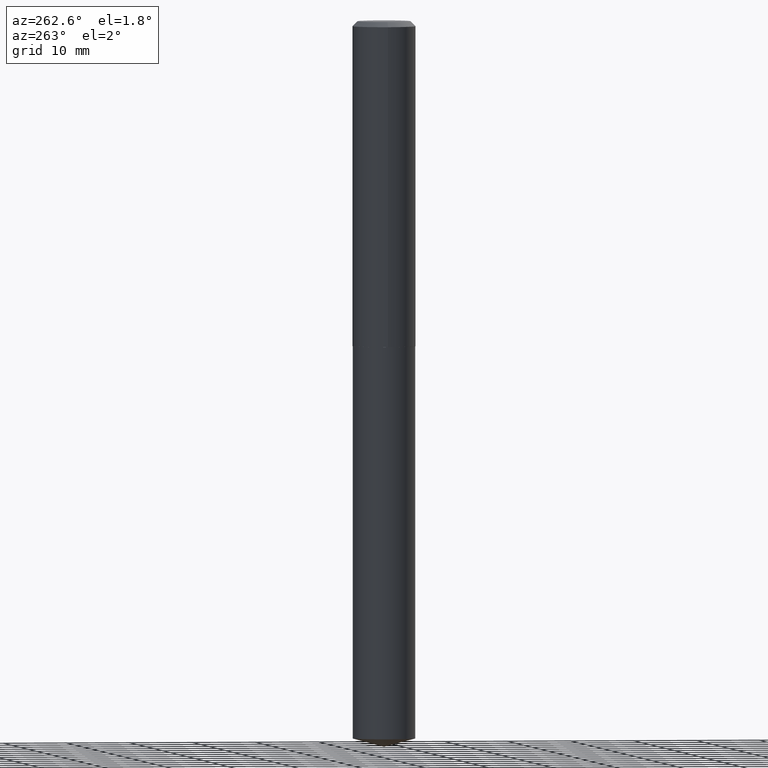
[diagram: clean part render]
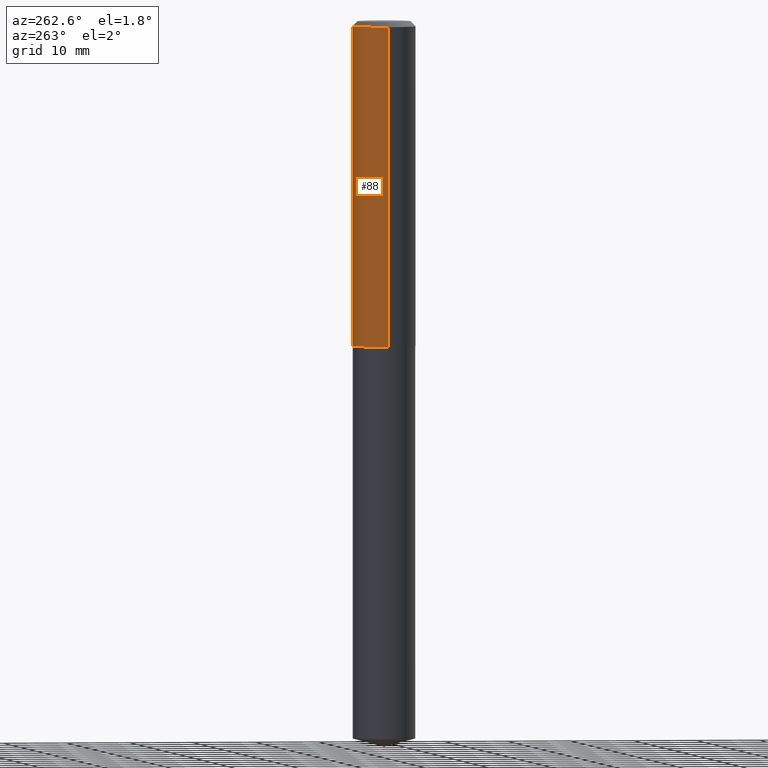
[diagram: same view with one face highlighted and labeled with its STEP entity id]
A machine part, auxiliary view. The second image highlights one B-rep face of the part: STEP entity #88.
In plain terms, the highlighted cylindrical surface (edge-blend (fillet) strip) has radius 4.9606 mm, axis along (-0, 0, 1).
Its self-contained STEP definition (entity closure, byte-faithful):
#37 = EDGE_CURVE ( 'NONE', #303, #297, #305, .T. ) ;
#43 = CIRCLE ( 'NONE', #231, 0.1953000000000002789 ) ;
#48 = AXIS2_PLACEMENT_3D ( 'NONE', #262, #92, #201 ) ;
#51 = EDGE_CURVE ( 'NONE', #252, #366, #337, .T. ) ;
#61 = CIRCLE ( 'NONE', #378, 0.1953000000000000014 ) ;
#69 = ORIENTED_EDGE ( 'NONE', *, *, #241, .T. ) ;
#88 = ADVANCED_FACE ( 'NONE', ( #121 ), #347, .T. ) ;
#92 = DIRECTION ( 'NONE',  ( -2.445468806185136597E-29, 3.491481338843145583E-15, 1.000000000000000000 ) ) ;
#98 = EDGE_CURVE ( 'NONE', #297, #366, #61, .T. ) ;
#121 = FACE_OUTER_BOUND ( 'NONE', #221, .T. ) ;
#123 = CARTESIAN_POINT ( 'NONE',  ( 4.927864191343668736E-29, -7.035684045902822940E-15, -2.015099999999999891 ) ) ;
#131 = ORIENTED_EDGE ( 'NONE', *, *, #51, .T. ) ;
#133 = CARTESIAN_POINT ( 'NONE',  ( 0.1953000000000002789, -8.399456656854951226E-15, -2.015099999999999891 ) ) ;
#139 = CARTESIAN_POINT ( 'NONE',  ( -0.1953000000000000014, -2.184706455931358572E-15, -0.03125000000000021511 ) ) ;
#191 = VECTOR ( 'NONE', #371, 39.37007874015748143 ) ;
#201 = DIRECTION ( 'NONE',  ( 1.000000000000000000, -6.982962677686265922E-15, 4.876176775795935793E-29 ) ) ;
#202 = CARTESIAN_POINT ( 'NONE',  ( -0.1953000000000001402, 1.387689962939476659E-15, -9.606680231267837403E-30 ) ) ;
#208 = DIRECTION ( 'NONE',  ( 1.000000000000000000, -6.982962677686265922E-15, 0.000000000000000000 ) ) ;
#216 = VECTOR ( 'NONE', #381, 39.37007874015748143 ) ;
#221 = EDGE_LOOP ( 'NONE', ( #69, #131, #354, #330 ) ) ;
#231 = AXIS2_PLACEMENT_3D ( 'NONE', #123, #352, #344 ) ;
#241 = EDGE_CURVE ( 'NONE', #303, #252, #43, .T. ) ;
#252 = VERTEX_POINT ( 'NONE', #380 ) ;
#262 = CARTESIAN_POINT ( 'NONE',  ( 0.000000000000000000, 0.000000000000000000, 0.000000000000000000 ) ) ;
#263 = DIRECTION ( 'NONE',  ( -2.445468806185136597E-29, 3.491481338843145583E-15, 1.000000000000000000 ) ) ;
#282 = CARTESIAN_POINT ( 'NONE',  ( 0.1953000000000001402, -1.363772610952128681E-15, 9.523173243129469184E-30 ) ) ;
#297 = VERTEX_POINT ( 'NONE', #323 ) ;
#303 = VERTEX_POINT ( 'NONE', #133 ) ;
#305 = LINE ( 'NONE', #282, #191 ) ;
#323 = CARTESIAN_POINT ( 'NONE',  ( 0.1953000000000000014, -1.472881402790976795E-15, -0.03125000000000021511 ) ) ;
#330 = ORIENTED_EDGE ( 'NONE', *, *, #37, .F. ) ;
#337 = LINE ( 'NONE', #202, #216 ) ;
#344 = DIRECTION ( 'NONE',  ( 1.000000000000000000, -6.982962677686263555E-15, 0.000000000000000000 ) ) ;
#345 = CARTESIAN_POINT ( 'NONE',  ( 7.642090019328603538E-31, -1.091087918388490390E-16, -0.03125000000000021511 ) ) ;
#347 = CYLINDRICAL_SURFACE ( 'NONE', #48, 0.1953000000000001402 ) ;
#352 = DIRECTION ( 'NONE',  ( -2.445468806185136597E-29, 3.491481338843145583E-15, 1.000000000000000000 ) ) ;
#354 = ORIENTED_EDGE ( 'NONE', *, *, #98, .F. ) ;
#366 = VERTEX_POINT ( 'NONE', #139 ) ;
#371 = DIRECTION ( 'NONE',  ( -2.445468806185136877E-29, 3.491481338843145188E-15, 1.000000000000000000 ) ) ;
#378 = AXIS2_PLACEMENT_3D ( 'NONE', #345, #263, #208 ) ;
#380 = CARTESIAN_POINT ( 'NONE',  ( -0.1953000000000002789, -5.647994082963345492E-15, -2.015099999999999891 ) ) ;
#381 = DIRECTION ( 'NONE',  ( -2.445468806185136877E-29, 3.491481338843145188E-15, 1.000000000000000000 ) ) ;